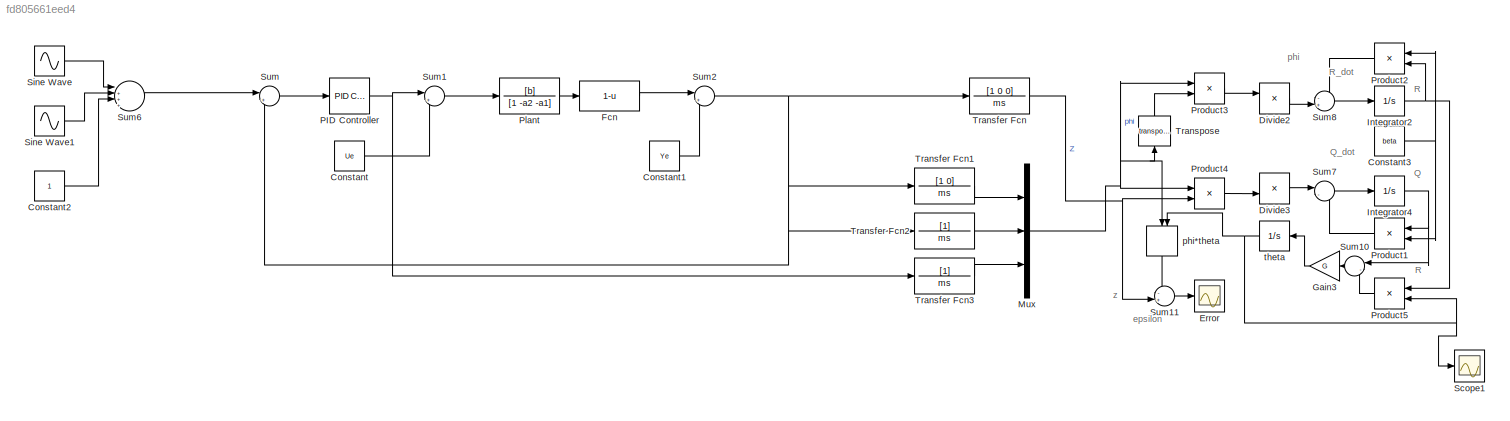
MODEL slx_fd805661eed4
KIND model
CONFIG AbsTol = auto
CONFIG EnableMultiTasking = off
CONFIG FixedStep = auto
CONFIG MaxStep = auto
CONFIG MinStep = auto
CONFIG RelTol = 1e-3
CONFIG SampleTimeConstraint = Unconstrained
CONFIG Solver = VariableStepAuto
CONFIG SolverName = VariableStepAuto
CONFIG StartTime = 0.0
CONFIG StopTime = 1000
BLOCK [Constant] Constant
  Value = Ue
BLOCK [Constant] Constant1
  Value = Ye
BLOCK [Constant] Constant2
BLOCK [Constant] Constant3
  Value = beta
BLOCK [Product] Divide2
  InputSameDT = off
  Inputs = */
  OutDataTypeStr = Inherit: Inherit via internal rule
  Ports = [2, 1]
  RndMeth = Floor
  SaturateOnIntegerOverflow = off
BLOCK [Product] Divide3
  InputSameDT = off
  Inputs = /*
  OutDataTypeStr = Inherit: Inherit via internal rule
  Ports = [2, 1]
  RndMeth = Floor
  SaturateOnIntegerOverflow = off
BLOCK [Scope] Error
  NumInputPorts = 1
  Ports = [1]
  ScopeSpecificationString = Simulink.scopes.TimeScopeBlockCfg('CurrentConfiguration', extmgr.ConfigurationSet(extmgr.Configuration('Core','General UI',true),extmgr.Configuration('Core','Source UI',true),extmgr.Configuration('Sources','WiredSimulink',true,'DataLoggingVariableName','ScopeData1'),extmgr.Configuration('Visuals','Time Domain',true,'SerializedDisplays',{struct('MinYLimReal','-367037.68554','MaxYLimReal','510468.66...<+1402ch>
BLOCK [Fcn] Fcn
  Expr = 1-u
BLOCK [Gain] Gain3
  Gain = G
  OutDataTypeStr = Inherit: Inherit via internal rule
  ParamDataTypeStr = Inherit: Inherit via internal rule
  SaturateOnIntegerOverflow = off
BLOCK [Integrator] Integrator2
  Ports = [1, 1]
BLOCK [Integrator] Integrator4
  Ports = [1, 1]
BLOCK [Mux] Mux
  DisplayOption = bar
  Inputs = 3
  Ports = [3, 1]
BLOCK [Reference] PID Controller  REF=simulink/Continuous/PID Controller
  Ports = [1, 1]
  SourceBlock = simulink/Continuous/PID Controller
  SourceType = PID 1dof
BLOCK [TransferFcn] Plant
  Denominator = [1 -a2 -a1]
  Numerator = [b]
BLOCK [Product] Product1
  InputSameDT = off
  OutDataTypeStr = Inherit: Inherit via internal rule
  Ports = [2, 1]
  RndMeth = Floor
  SaturateOnIntegerOverflow = off
BLOCK [Product] Product2
  InputSameDT = off
  OutDataTypeStr = Inherit: Inherit via internal rule
  Ports = [2, 1]
  RndMeth = Floor
  SaturateOnIntegerOverflow = off
BLOCK [Product] Product3
  InputSameDT = off
  Inputs = **
  Multiplication = Matrix(*)
  OutDataTypeStr = Inherit: Inherit via internal rule
  Ports = [2, 1]
  RndMeth = Floor
  SaturateOnIntegerOverflow = off
BLOCK [Product] Product4
  InputSameDT = off
  Inputs = **
  Multiplication = Matrix(*)
  OutDataTypeStr = Inherit: Inherit via internal rule
  Ports = [2, 1]
  RndMeth = Floor
  SaturateOnIntegerOverflow = off
BLOCK [Product] Product5
  InputSameDT = off
  Multiplication = Matrix(*)
  OutDataTypeStr = Inherit: Inherit via internal rule
  Ports = [2, 1]
  RndMeth = Floor
  SaturateOnIntegerOverflow = off
BLOCK [Scope] Scope1
  NumInputPorts = 1
  Ports = [1]
  ScopeSpecificationString = Simulink.scopes.TimeScopeBlockCfg('CurrentConfiguration', extmgr.ConfigurationSet(extmgr.Configuration('Core','General UI',true),extmgr.Configuration('Core','Source UI',true),extmgr.Configuration('Sources','WiredSimulink',true,'DataLoggingVariableName','ScopeData2'),extmgr.Configuration('Visuals','Time Domain',true,'SerializedDisplays',{struct('MinYLimReal','-559.40815','MaxYLimReal','2670.39787',...<+1477ch>
BLOCK [Sin] Sine Wave
  Ports = [0, 1]
  SampleTime = 0
BLOCK [Sin] Sine Wave1
  Ports = [0, 1]
  SampleTime = 0
BLOCK [Sum] Sum
  IconShape = round
  InputSameDT = off
  Inputs = |+-
  OutDataTypeStr = Inherit: Inherit via internal rule
  Ports = [2, 1]
  SaturateOnIntegerOverflow = off
BLOCK [Sum] Sum1
  IconShape = round
  InputSameDT = off
  Inputs = |++
  OutDataTypeStr = Inherit: Inherit via internal rule
  Ports = [2, 1]
  SaturateOnIntegerOverflow = off
BLOCK [Sum] Sum10
  IconShape = round
  InputSameDT = off
  Inputs = |--
  OutDataTypeStr = Inherit: Inherit via internal rule
  Ports = [2, 1]
  SaturateOnIntegerOverflow = off
BLOCK [Sum] Sum11
  IconShape = round
  InputSameDT = off
  Inputs = -+|
  OutDataTypeStr = Inherit: Inherit via internal rule
  Ports = [2, 1]
  SaturateOnIntegerOverflow = off
BLOCK [Sum] Sum2
  IconShape = round
  InputSameDT = off
  Inputs = |++
  OutDataTypeStr = Inherit: Inherit via internal rule
  Ports = [2, 1]
  SaturateOnIntegerOverflow = off
BLOCK [Sum] Sum6
  IconShape = round
  InputSameDT = off
  Inputs = |++++
  OutDataTypeStr = Inherit: Inherit via internal rule
  Ports = [4, 1]
  SaturateOnIntegerOverflow = off
BLOCK [Sum] Sum7
  IconShape = round
  InputSameDT = off
  Inputs = |--
  OutDataTypeStr = Inherit: Inherit via internal rule
  Ports = [2, 1]
  SaturateOnIntegerOverflow = off
BLOCK [Sum] Sum8
  IconShape = round
  InputSameDT = off
  Inputs = -+|
  OutDataTypeStr = Inherit: Inherit via internal rule
  Ports = [2, 1]
  SaturateOnIntegerOverflow = off
BLOCK [TransferFcn] Transfer Fcn
  Denominator = ms
  Numerator = [1 0 0]
BLOCK [TransferFcn] Transfer Fcn1
  Denominator = ms
  Numerator = [1 0]
BLOCK [TransferFcn] Transfer Fcn2
  Denominator = ms
BLOCK [TransferFcn] Transfer Fcn3
  Denominator = ms
BLOCK [Math] Transpose
  Operator = transpose
  Ports = [1, 1]
BLOCK [DotProduct] phi*theta
  OutDataTypeStr = Inherit: Inherit via internal rule
BLOCK [Integrator] theta
  InitialCondition = t0
  Ports = [1, 1]
ANNOTATION (root): Q
ANNOTATION (root): Q_dot
ANNOTATION (root): R
ANNOTATION (root): R_dot
ANNOTATION (root): epsilon
ANNOTATION (root): phi
ANNOTATION (root): z
LINE Constant1:1 -> Sum2:2
LINE Constant2:1 -> Sum6:3
NET Constant3:1 -> Product1:2, Product2:1
LINE Constant:1 -> Sum1:2
LINE Divide2:1 -> Sum8:2
LINE Divide3:1 -> Sum7:1
LINE Fcn:1 -> Sum2:1
LINE Gain3:1 -> theta:1
NET Integrator2:1 -> Product2:2, Product5:1
NET Integrator4:1 -> Product1:1, Sum10:1
NET Mux:1 -> Product3:1, Product4:1, Transpose:1, phi*theta:1
NET PID Controller:1 -> Sum1:1, Transfer Fcn3:1
LINE Plant:1 -> Fcn:1
LINE Product1:1 -> Sum7:2
LINE Product2:1 -> Sum8:1
LINE Product3:1 -> Divide2:1
LINE Product4:1 -> Divide3:2
LINE Product5:1 -> Sum10:2
LINE Sine Wave1:1 -> Sum6:2
LINE Sine Wave:1 -> Sum6:1
LINE Sum10:1 -> Gain3:1
LINE Sum11:1 -> Error:1
LINE Sum1:1 -> Plant:1
NET Sum2:1 -> Sum:2, Transfer Fcn1:1, Transfer Fcn2:1, Transfer Fcn:1
LINE Sum6:1 -> Sum:1
LINE Sum7:1 -> Integrator4:1
LINE Sum8:1 -> Integrator2:1
LINE Sum:1 -> PID Controller:1
LINE Transfer Fcn1:1 -> Mux:1
LINE Transfer Fcn2:1 -> Mux:2
LINE Transfer Fcn3:1 -> Mux:3
NET Transfer Fcn:1 -> Product4:2, Sum11:2
LINE Transpose:1 -> Product3:2
LINE phi*theta:1 -> Sum11:1
NET theta:1 -> Product5:2, Scope1:1, phi*theta:2
note: NET lines group one-source signal fan-out (src -> all destinations, sorted); 1:1 wires keep LINE
